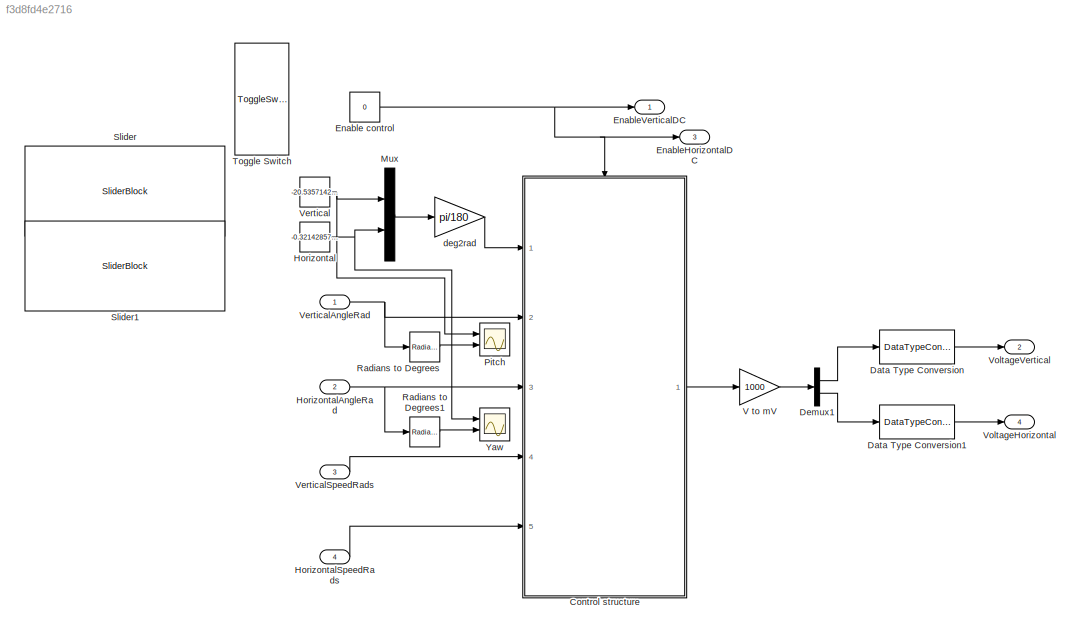
MODEL slx_f3d8fd4e2716
KIND model
CONFIG AbsTol = auto
CONFIG EnableMultiTasking = off
CONFIG FixedStep = 0.01
CONFIG MaxStep = auto
CONFIG MinStep = auto
CONFIG RelTol = 1e-3
CONFIG SampleTimeConstraint = Unconstrained
CONFIG Solver = FixedStepDiscrete
CONFIG SolverName = FixedStepDiscrete
CONFIG StartTime = 0.0
CONFIG StopTime = 10.0
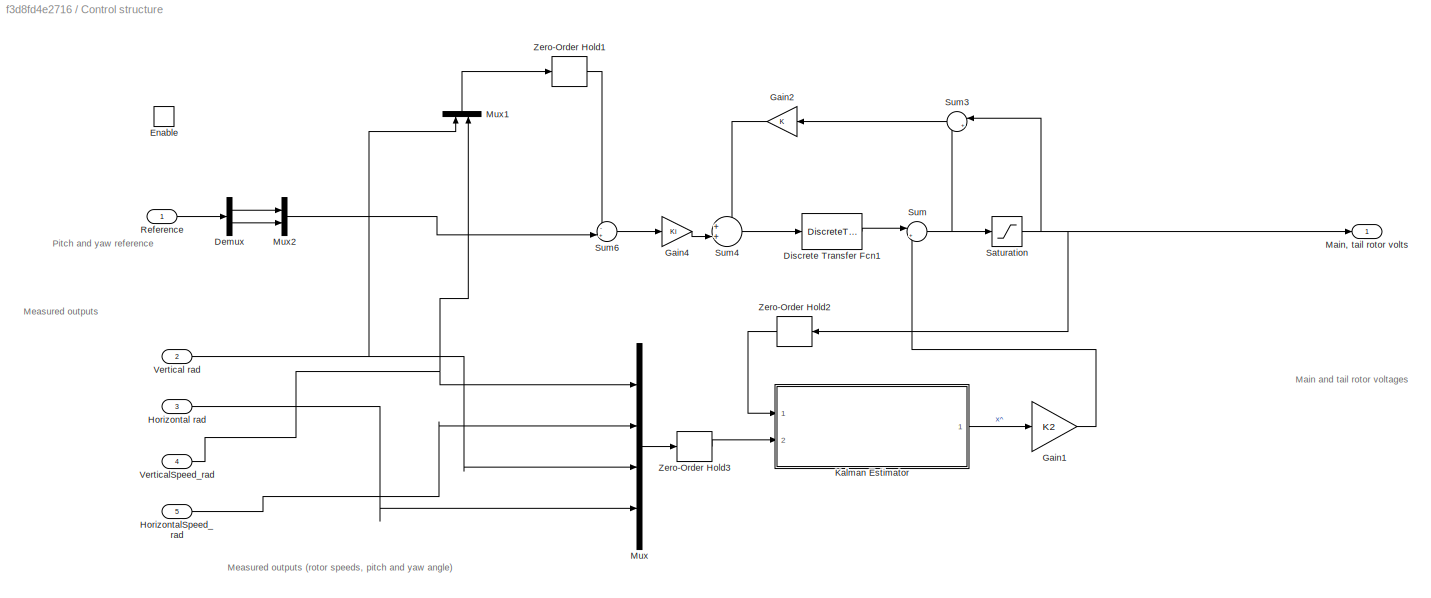
BLOCK [SubSystem] Control structure
  Ports = [5, 1, 1]
  RequestExecContextInheritance = off
BLOCK [Demux] Control structure/Demux
  Outputs = 2
  Ports = [1, 2]
BLOCK [DiscreteTransferFcn] Control structure/Discrete Transfer Fcn1
  Denominator = [1 -1]
  InputPortMap = u0
  Ports = [1, 1]
  SampleTime = Ts
BLOCK [EnablePort] Control structure/Enable
  Ports = []
  StatesWhenEnabling = reset
BLOCK [Gain] Control structure/Gain1
  Gain = K2
  Multiplication = Matrix(K*u) (u vector)
BLOCK [Gain] Control structure/Gain2
BLOCK [Gain] Control structure/Gain4
  Gain = Ki
  Multiplication = Matrix(K*u) (u vector)
BLOCK [Inport] Control structure/Horizontal rad
  Port = 3
BLOCK [Inport] Control structure/HorizontalSpeed_rad
  Port = 5
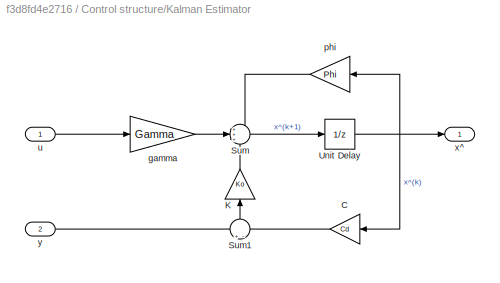
BLOCK [SubSystem] Control structure/Kalman Estimator
  Ports = [2, 1]
  RequestExecContextInheritance = off
BLOCK [Gain] Control structure/Kalman Estimator/C
  Gain = Cd
  Multiplication = Matrix(K*u)
  OutDataTypeStr = Inherit: Same as input
  ParamDataTypeStr = Inherit: Same as input
  SaturateOnIntegerOverflow = on
BLOCK [Gain] Control structure/Kalman Estimator/K
  Gain = Ko
  Multiplication = Matrix(K*u)
  OutDataTypeStr = Inherit: Same as input
  ParamDataTypeStr = Inherit: Same as input
  SaturateOnIntegerOverflow = on
BLOCK [Sum] Control structure/Kalman Estimator/Sum
  Inputs = +++
  Ports = [3, 1]
  SaturateOnIntegerOverflow = on
BLOCK [Sum] Control structure/Kalman Estimator/Sum1
  Inputs = +-
  Ports = [2, 1]
  SaturateOnIntegerOverflow = on
BLOCK [UnitDelay] Control structure/Kalman Estimator/Unit Delay
  SampleTime = Ts
BLOCK [Gain] Control structure/Kalman Estimator/gamma
  Gain = Gamma
  Multiplication = Matrix(K*u)
  OutDataTypeStr = Inherit: Same as input
  ParamDataTypeStr = Inherit: Same as input
  SaturateOnIntegerOverflow = on
BLOCK [Gain] Control structure/Kalman Estimator/phi
  Gain = Phi
  Multiplication = Matrix(K*u)
  OutDataTypeStr = Inherit: Same as input
  ParamDataTypeStr = Inherit: Same as input
  SaturateOnIntegerOverflow = on
BLOCK [Inport] Control structure/Kalman Estimator/u
BLOCK [Outport] Control structure/Kalman Estimator/x^
BLOCK [Inport] Control structure/Kalman Estimator/y
  Port = 2
BLOCK [Outport] Control structure/Main, tail rotor volts
BLOCK [Mux] Control structure/Mux
  DisplayOption = bar
  Ports = [4, 1]
BLOCK [Mux] Control structure/Mux1
  DisplayOption = bar
  Inputs = 2
  Ports = [2, 1]
BLOCK [Mux] Control structure/Mux2
  DisplayOption = bar
  Inputs = 2
  Ports = [2, 1]
BLOCK [Inport] Control structure/Reference
BLOCK [Saturate] Control structure/Saturation
  LowerLimit = -18
  UpperLimit = 18
BLOCK [Sum] Control structure/Sum
  Inputs = |+-
  Ports = [2, 1]
BLOCK [Sum] Control structure/Sum3
  Inputs = |+-
  Ports = [2, 1]
BLOCK [Sum] Control structure/Sum4
  Inputs = ++|
  Ports = [2, 1]
BLOCK [Sum] Control structure/Sum6
  Inputs = -+|
  Ports = [2, 1]
BLOCK [Inport] Control structure/Vertical rad
  Port = 2
BLOCK [Inport] Control structure/VerticalSpeed_rad
  Port = 4
BLOCK [ZeroOrderHold] Control structure/Zero-Order Hold1
  SampleTime = Ts
BLOCK [ZeroOrderHold] Control structure/Zero-Order Hold2
  SampleTime = Ts
BLOCK [ZeroOrderHold] Control structure/Zero-Order Hold3
  SampleTime = Ts
BLOCK [DataTypeConversion] Data Type Conversion
  OutDataTypeStr = int16
  RndMeth = Floor
  SaturateOnIntegerOverflow = off
BLOCK [DataTypeConversion] Data Type Conversion1
  OutDataTypeStr = int16
  RndMeth = Floor
  SaturateOnIntegerOverflow = off
BLOCK [Demux] Demux1
  Outputs = 2
  Ports = [1, 2]
BLOCK [Constant] Enable control
  OutDataTypeStr = boolean
  Value = 0
BLOCK [Outport] EnableHorizontalDC
  OutDataTypeStr = boolean
  Port = 3
BLOCK [Outport] EnableVerticalDC
  OutDataTypeStr = boolean
BLOCK [Constant] Horizontal
  Value = -0.321428571429
BLOCK [Inport] HorizontalAngleRad
  OutDataTypeStr = double
  Port = 2
BLOCK [Inport] HorizontalSpeedRads
  Port = 4
BLOCK [Mux] Mux
  DisplayOption = bar
  Inputs = 2
  Ports = [2, 1]
BLOCK [Scope] Pitch
  Floating = off
  NumInputPorts = 2
  Ports = [2]
  ScopeSpecificationString = Simulink.scopes.TimeScopeBlockCfg('CurrentConfiguration', extmgr.ConfigurationSet(extmgr.Configuration('Core','General UI',true),extmgr.Configuration('Core','Source UI',true),extmgr.Configuration('Sources','WiredSimulink',true),extmgr.Configuration('Visuals','Time Domain',true,'SerializedDisplays',{struct('MinYLimReal','-40','MaxYLimReal','0','YLabelReal','','MinYLimMag','0.00000','MaxYLimMag','15...<+1319ch>
BLOCK [Reference] Radians to Degrees  REF=simulink_extras/Transformations/Radians
to Degrees
  Ports = [1, 1]
  SourceBlock = simulink_extras/Transformations/Radians\nto Degrees
  SourceProductBaseCode = SL
  SourceType = RadiansToDegrees
BLOCK [Reference] Radians to Degrees1  REF=simulink_extras/Transformations/Radians
to Degrees
  Ports = [1, 1]
  SourceBlock = simulink_extras/Transformations/Radians\nto Degrees
  SourceProductBaseCode = SL
  SourceType = RadiansToDegrees
BLOCK [SliderBlock] Slider
  ScaleMax = 0
  ScaleMin = -50
  WebBlockId = 284
BLOCK [SliderBlock] Slider1
  ScaleMax = 90
  ScaleMin = -90
  WebBlockId = 286
BLOCK [ToggleSwitchBlock] Toggle Switch
  WebBlockId = 285
BLOCK [Gain] V to mV
  Gain = 1000
BLOCK [Constant] Vertical
  Value = -20.53571428571
BLOCK [Inport] VerticalAngleRad
  OutDataTypeStr = double
BLOCK [Inport] VerticalSpeedRads
  Port = 3
BLOCK [Outport] VoltageHorizontal
  Port = 4
BLOCK [Outport] VoltageVertical
  Port = 2
BLOCK [Scope] Yaw
  Floating = off
  NumInputPorts = 2
  Ports = [2]
  ScopeSpecificationString = Simulink.scopes.TimeScopeBlockCfg('CurrentConfiguration', extmgr.ConfigurationSet(extmgr.Configuration('Core','General UI',true),extmgr.Configuration('Core','Source UI',true),extmgr.Configuration('Sources','WiredSimulink',true,'DataLoggingVariableName','ScopeData1'),extmgr.Configuration('Visuals','Time Domain',true,'SerializedDisplays',{struct('MinYLimReal','-33.7725','MaxYLimReal','33.9525','YLab...<+1420ch>
BLOCK [Gain] deg2rad
  Gain = pi/180
ANNOTATION Control structure: Main and tail rotor voltages
ANNOTATION Control structure: Measured outputs (rotor speeds, pitch and yaw angle)
ANNOTATION Control structure: Pitch and yaw reference
ANNOTATION Control structure: Measured outputs
LINE Control structure/Demux:1 -> Control structure/Mux2:1
LINE Control structure/Demux:2 -> Control structure/Mux2:2
LINE Control structure/Discrete Transfer Fcn1:1 -> Control structure/Sum:1
LINE Control structure/Gain1:1 -> Control structure/Sum:2
LINE Control structure/Gain2:1 -> Control structure/Sum4:1
LINE Control structure/Gain4:1 -> Control structure/Sum4:2
LINE Control structure/Horizontal rad:1 -> Control structure/Mux:4
LINE Control structure/HorizontalSpeed_rad:1 -> Control structure/Mux:2
LINE Control structure/Kalman Estimator/C:1 -> Control structure/Kalman Estimator/Sum1:2
LINE Control structure/Kalman Estimator/K:1 -> Control structure/Kalman Estimator/Sum:3
LINE Control structure/Kalman Estimator/Sum1:1 -> Control structure/Kalman Estimator/K:1
LINE Control structure/Kalman Estimator/Sum:1 -> Control structure/Kalman Estimator/Unit Delay:1
NET Control structure/Kalman Estimator/Unit Delay:1 -> Control structure/Kalman Estimator/C:1, Control structure/Kalman Estimator/phi:1, Control structure/Kalman Estimator/x^:1
LINE Control structure/Kalman Estimator/gamma:1 -> Control structure/Kalman Estimator/Sum:2
LINE Control structure/Kalman Estimator/phi:1 -> Control structure/Kalman Estimator/Sum:1
LINE Control structure/Kalman Estimator/u:1 -> Control structure/Kalman Estimator/gamma:1
LINE Control structure/Kalman Estimator/y:1 -> Control structure/Kalman Estimator/Sum1:1
LINE Control structure/Kalman Estimator:1 -> Control structure/Gain1:1
LINE Control structure/Mux1:1 -> Control structure/Zero-Order Hold1:1
LINE Control structure/Mux2:1 -> Control structure/Sum6:2
LINE Control structure/Mux:1 -> Control structure/Zero-Order Hold3:1
LINE Control structure/Reference:1 -> Control structure/Demux:1
NET Control structure/Saturation:1 -> Control structure/Main, tail rotor volts:1, Control structure/Sum3:1, Control structure/Zero-Order Hold2:1
LINE Control structure/Sum3:1 -> Control structure/Gain2:1
LINE Control structure/Sum4:1 -> Control structure/Discrete Transfer Fcn1:1
LINE Control structure/Sum6:1 -> Control structure/Gain4:1
NET Control structure/Sum:1 -> Control structure/Saturation:1, Control structure/Sum3:2
NET Control structure/Vertical rad:1 -> Control structure/Mux1:1, Control structure/Mux:3
NET Control structure/VerticalSpeed_rad:1 -> Control structure/Mux1:2, Control structure/Mux:1
LINE Control structure/Zero-Order Hold1:1 -> Control structure/Sum6:1
LINE Control structure/Zero-Order Hold2:1 -> Control structure/Kalman Estimator:1
LINE Control structure/Zero-Order Hold3:1 -> Control structure/Kalman Estimator:2
LINE Control structure:1 -> V to mV:1
LINE Data Type Conversion1:1 -> VoltageHorizontal:1
LINE Data Type Conversion:1 -> VoltageVertical:1
LINE Demux1:1 -> Data Type Conversion:1
LINE Demux1:2 -> Data Type Conversion1:1
NET Enable control:1 -> Control structure:enable, EnableHorizontalDC:1, EnableVerticalDC:1
NET Horizontal:1 -> Mux:2, Yaw:1
NET HorizontalAngleRad:1 -> Control structure:3, Radians to Degrees1:1
LINE HorizontalSpeedRads:1 -> Control structure:5
LINE Mux:1 -> deg2rad:1
LINE Radians to Degrees1:1 -> Yaw:2
LINE Radians to Degrees:1 -> Pitch:2
LINE V to mV:1 -> Demux1:1
NET Vertical:1 -> Mux:1, Pitch:1
NET VerticalAngleRad:1 -> Control structure:2, Radians to Degrees:1
LINE VerticalSpeedRads:1 -> Control structure:4
LINE deg2rad:1 -> Control structure:1
note: NET lines group one-source signal fan-out (src -> all destinations, sorted); 1:1 wires keep LINE
